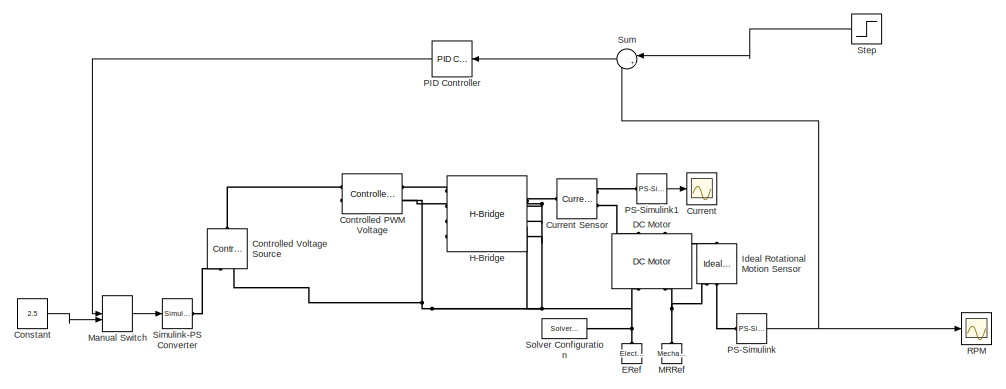
[diagram: root canvas - part 1/3, top left region]
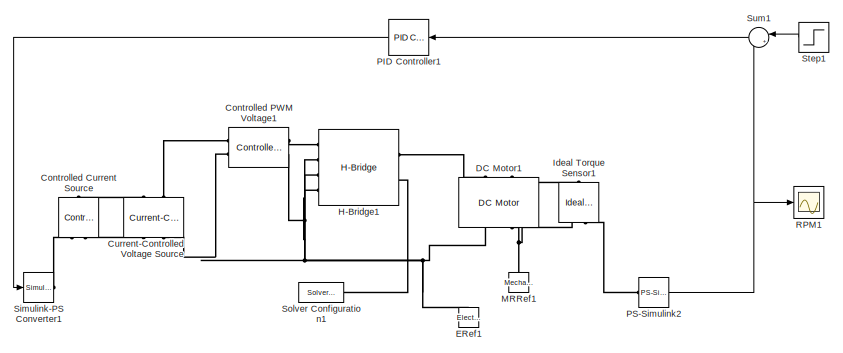
[diagram: root canvas - part 2/3, top right region]
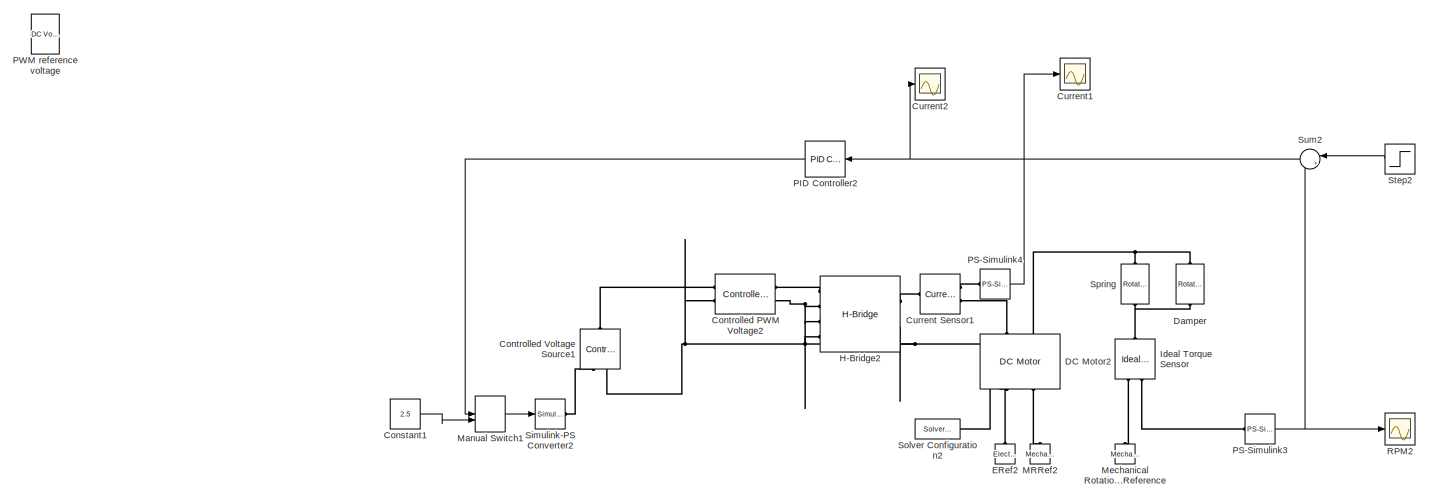
[diagram: root canvas - part 3/3, bottom center region]
MODEL slx_57faae18de76
KIND model
CONFIG AbsTol = 1e-3
CONFIG EnableMultiTasking = on
CONFIG FixedStep = 1e-3
CONFIG MaxStep = auto
CONFIG MinStep = auto
CONFIG RelTol = 1e-3
CONFIG SampleTimeConstraint = Unconstrained
CONFIG SolverName = FixedStepAuto
CONFIG StartTime = 0.0
CONFIG StopTime = 10
BLOCK [Constant] Constant
  Value = 2.5
BLOCK [Constant] Constant1
  Value = 2.5
BLOCK [Reference] Controlled Current Source  REF=fl_lib/Electrical/Electrical Sources/Controlled Current
Source
  Commented = on
  NameLocation = right
  Ports = [0, 0, 0, 0, 0, 1, 2]
  SourceBlock = fl_lib/Electrical/Electrical Sources/Controlled Current\nSource
  SourceProductBaseCode = SS
  SourceType = Controlled Current\nSource
BLOCK [Reference] Controlled PWM Voltage  REF=ee_lib/Integrated Circuits/Controlled PWM
Voltage
  Ports = [0, 0, 0, 0, 0, 2, 2]
  SourceBlock = ee_lib/Integrated Circuits/Controlled PWM\nVoltage
  SourceProductBaseCode = PS
  SourceType = Controlled PWM\nVoltage
BLOCK [Reference] Controlled PWM Voltage1  REF=ee_lib/Integrated Circuits/Controlled PWM
Voltage
  Commented = on
  Ports = [0, 0, 0, 0, 0, 2, 2]
  SourceBlock = ee_lib/Integrated Circuits/Controlled PWM\nVoltage
  SourceProductBaseCode = PS
  SourceType = Controlled PWM\nVoltage
BLOCK [Reference] Controlled PWM Voltage2  REF=ee_lib/Integrated Circuits/Controlled PWM
Voltage
  Ports = [0, 0, 0, 0, 0, 2, 2]
  SourceBlock = ee_lib/Integrated Circuits/Controlled PWM\nVoltage
  SourceProductBaseCode = PS
  SourceType = Controlled PWM\nVoltage
BLOCK [Reference] Controlled Voltage Source  REF=fl_lib/Electrical/Electrical Sources/Controlled Voltage
Source
  NameLocation = right
  Ports = [0, 0, 0, 0, 0, 1, 2]
  SourceBlock = fl_lib/Electrical/Electrical Sources/Controlled Voltage\nSource
  SourceProductBaseCode = SS
  SourceType = Controlled Voltage\nSource
BLOCK [Reference] Controlled Voltage Source1  REF=fl_lib/Electrical/Electrical Sources/Controlled Voltage
Source
  NameLocation = right
  Ports = [0, 0, 0, 0, 0, 1, 2]
  SourceBlock = fl_lib/Electrical/Electrical Sources/Controlled Voltage\nSource
  SourceProductBaseCode = SS
  SourceType = Controlled Voltage\nSource
BLOCK [Scope] Current
  Floating = off
  NumInputPorts = 1
  Ports = [1]
  ScopeSpecificationString = Simulink.scopes.TimeScopeBlockCfg('CurrentConfiguration', extmgr.ConfigurationSet(extmgr.Configuration('Core','General UI',true),extmgr.Configuration('Core','Source UI',true),extmgr.Configuration('Sources','WiredSimulink',true,'DataLogging',true,'DataLoggingVariableName','RPM','DataLoggingSaveFormat','StructureWithTime','DataLoggingDecimation','1','DataLoggingDecimateData',true),extmgr.Configurati...<+1687ch>
BLOCK [Reference] Current Sensor  REF=fl_lib/Electrical/Electrical Sensors/Current Sensor
  NameLocation = top
  Ports = [0, 0, 0, 0, 0, 1, 2]
  SourceBlock = fl_lib/Electrical/Electrical Sensors/Current Sensor
  SourceProductName = Foundation Library
  SourceType = Current Sensor
BLOCK [Reference] Current Sensor1  REF=fl_lib/Electrical/Electrical Sensors/Current Sensor
  NameLocation = top
  Ports = [0, 0, 0, 0, 0, 1, 2]
  SourceBlock = fl_lib/Electrical/Electrical Sensors/Current Sensor
  SourceProductName = Foundation Library
  SourceType = Current Sensor
BLOCK [Reference] Current-Controlled Voltage Source  REF=fl_lib/Electrical/Electrical Sources/Current-Controlled
Voltage Source
  Commented = on
  NameLocation = right
  Ports = [0, 0, 0, 0, 0, 2, 2]
  SourceBlock = fl_lib/Electrical/Electrical Sources/Current-Controlled\nVoltage Source
  SourceProductBaseCode = SS
  SourceType = Current-Controlled\nVoltage Source
BLOCK [Scope] Current1
  Floating = off
  NumInputPorts = 1
  Ports = [1]
  ScopeSpecificationString = Simulink.scopes.TimeScopeBlockCfg('CurrentConfiguration', extmgr.ConfigurationSet(extmgr.Configuration('Core','General UI',true),extmgr.Configuration('Core','Source UI',true),extmgr.Configuration('Sources','WiredSimulink',true,'DataLogging',true,'DataLoggingVariableName','ScopeData2','DataLoggingSaveFormat','StructureWithTime','DataLoggingDecimation','1','DataLoggingDecimateData',true),extmgr.Conf...<+1703ch>
BLOCK [Scope] Current2
  Floating = off
  NumInputPorts = 1
  Ports = [1]
  ScopeSpecificationString = Simulink.scopes.TimeScopeBlockCfg('CurrentConfiguration', extmgr.ConfigurationSet(extmgr.Configuration('Core','General UI',true),extmgr.Configuration('Core','Source UI',true),extmgr.Configuration('Sources','WiredSimulink',true,'DataLogging',true,'DataLoggingVariableName','ScopeData4','DataLoggingSaveFormat','StructureWithTime','DataLoggingDecimation','1','DataLoggingDecimateData',true),extmgr.Conf...<+1695ch>
BLOCK [Reference] DC Motor  REF=ee_lib/Electromechanical/Brushed Motors/DC Motor
  NameLocation = left
  Ports = [0, 0, 0, 0, 0, 2, 2]
  SourceBlock = ee_lib/Electromechanical/Brushed Motors/DC Motor
  SourceProductBaseCode = PS
  SourceType = DC Motor
BLOCK [Reference] DC Motor1  REF=ee_lib/Electromechanical/Brushed Motors/DC Motor
  Commented = on
  NameLocation = right
  Ports = [0, 0, 0, 0, 0, 2, 2]
  SourceBlock = ee_lib/Electromechanical/Brushed Motors/DC Motor
  SourceProductBaseCode = PS
  SourceType = DC Motor
BLOCK [Reference] DC Motor2  REF=ee_lib/Electromechanical/Brushed Motors/DC Motor
  NameLocation = left
  Ports = [0, 0, 0, 0, 0, 2, 2]
  SourceBlock = ee_lib/Electromechanical/Brushed Motors/DC Motor
  SourceProductBaseCode = PS
  SourceType = DC Motor
BLOCK [Reference] Damper  REF=fl_lib/Mechanical/Rotational Elements/Rotational Damper
  NameLocation = right
  Ports = [0, 0, 0, 0, 0, 1, 1]
  SourceBlock = fl_lib/Mechanical/Rotational Elements/Rotational Damper
  SourceProductName = Foundation Library
  SourceType = Rotational Damper
BLOCK [Reference] ERef  REF=fl_lib/Electrical/Electrical Elements/Electrical Reference
  NameLocation = left
  Ports = [0, 0, 0, 0, 0, 1]
  SourceBlock = fl_lib/Electrical/Electrical Elements/Electrical Reference
  SourceProductName = Foundation Library
  SourceType = Electrical Reference
BLOCK [Reference] ERef1  REF=fl_lib/Electrical/Electrical Elements/Electrical Reference
  Commented = on
  NameLocation = left
  Ports = [0, 0, 0, 0, 0, 1]
  SourceBlock = fl_lib/Electrical/Electrical Elements/Electrical Reference
  SourceProductName = Foundation Library
  SourceType = Electrical Reference
BLOCK [Reference] ERef2  REF=fl_lib/Electrical/Electrical Elements/Electrical Reference
  NameLocation = left
  Ports = [0, 0, 0, 0, 0, 1]
  SourceBlock = fl_lib/Electrical/Electrical Elements/Electrical Reference
  SourceProductName = Foundation Library
  SourceType = Electrical Reference
BLOCK [Reference] H-Bridge  REF=ee_lib/Semiconductors &
Converters/Converters/H-Bridge
  Ports = [0, 0, 0, 0, 0, 4, 2]
  SourceBlock = ee_lib/Semiconductors &\nConverters/Converters/H-Bridge
  SourceProductBaseCode = PS
  SourceType = H-Bridge
BLOCK [Reference] H-Bridge1  REF=ee_lib/Semiconductors &
Converters/Converters/H-Bridge
  Commented = on
  Ports = [0, 0, 0, 0, 0, 4, 2]
  SourceBlock = ee_lib/Semiconductors &\nConverters/Converters/H-Bridge
  SourceProductBaseCode = PS
  SourceType = H-Bridge
BLOCK [Reference] H-Bridge2  REF=ee_lib/Semiconductors &
Converters/Converters/H-Bridge
  Ports = [0, 0, 0, 0, 0, 4, 2]
  SourceBlock = ee_lib/Semiconductors &\nConverters/Converters/H-Bridge
  SourceProductBaseCode = PS
  SourceType = H-Bridge
BLOCK [Reference] Ideal Rotational Motion Sensor  REF=fl_lib/Mechanical/Mechanical Sensors/Ideal Rotational
Motion Sensor
  NameLocation = right
  Ports = [0, 0, 0, 0, 0, 1, 3]
  SourceBlock = fl_lib/Mechanical/Mechanical Sensors/Ideal Rotational\nMotion Sensor
  SourceProductName = Foundation Library
  SourceType = Ideal Rotational\nMotion Sensor
BLOCK [Reference] Ideal Torque Sensor  REF=fl_lib/Mechanical/Mechanical Sensors/Ideal Torque Sensor
  NameLocation = left
  Ports = [0, 0, 0, 0, 0, 1, 2]
  SourceBlock = fl_lib/Mechanical/Mechanical Sensors/Ideal Torque Sensor
  SourceProductBaseCode = SS
  SourceType = Ideal Torque Sensor
BLOCK [Reference] Ideal Torque Sensor1  REF=fl_lib/Mechanical/Mechanical Sensors/Ideal Torque Sensor
  Commented = on
  NameLocation = left
  Ports = [0, 0, 0, 0, 0, 1, 2]
  SourceBlock = fl_lib/Mechanical/Mechanical Sensors/Ideal Torque Sensor
  SourceProductBaseCode = SS
  SourceType = Ideal Torque Sensor
BLOCK [Reference] MRRef  REF=fl_lib/Mechanical/Rotational Elements/Mechanical
Rotational Reference
  NameLocation = right
  Ports = [0, 0, 0, 0, 0, 1]
  SourceBlock = fl_lib/Mechanical/Rotational Elements/Mechanical\nRotational Reference
  SourceProductName = Foundation Library
  SourceType = Mechanical\nRotational Reference
BLOCK [Reference] MRRef1  REF=fl_lib/Mechanical/Rotational Elements/Mechanical
Rotational Reference
  Commented = on
  NameLocation = right
  Ports = [0, 0, 0, 0, 0, 1]
  SourceBlock = fl_lib/Mechanical/Rotational Elements/Mechanical\nRotational Reference
  SourceProductName = Foundation Library
  SourceType = Mechanical\nRotational Reference
BLOCK [Reference] MRRef2  REF=fl_lib/Mechanical/Rotational Elements/Mechanical
Rotational Reference
  NameLocation = right
  Ports = [0, 0, 0, 0, 0, 1]
  SourceBlock = fl_lib/Mechanical/Rotational Elements/Mechanical\nRotational Reference
  SourceProductName = Foundation Library
  SourceType = Mechanical\nRotational Reference
BLOCK [ManualSwitch] Manual Switch
BLOCK [ManualSwitch] Manual Switch1
BLOCK [Reference] Mechanical Rotational Reference  REF=fl_lib/Mechanical/Rotational Elements/Mechanical
Rotational Reference
  NameLocation = right
  Ports = [0, 0, 0, 0, 0, 1]
  SourceBlock = fl_lib/Mechanical/Rotational Elements/Mechanical\nRotational Reference
  SourceProductBaseCode = SS
  SourceType = Mechanical\nRotational Reference
BLOCK [Reference] PID Controller  REF=pid_lib/PID Controller
  Ports = [1, 1]
  SourceBlock = pid_lib/PID Controller
  SourceProductBaseCode = SL
  SourceType = PID 1dof
BLOCK [Reference] PID Controller1  REF=pid_lib/PID Controller
  Commented = on
  Ports = [1, 1]
  SourceBlock = pid_lib/PID Controller
  SourceProductBaseCode = SL
  SourceType = PID 1dof
BLOCK [Reference] PID Controller2  REF=pid_lib/PID Controller
  Ports = [1, 1]
  SourceBlock = pid_lib/PID Controller
  SourceProductBaseCode = SL
  SourceType = PID 1dof
BLOCK [Reference] PS-Simulink  REF=nesl_utility/PS-Simulink
Converter
  Ports = [0, 1, 0, 0, 0, 1]
  SourceBlock = nesl_utility/PS-Simulink\nConverter
  SourceProductBaseCode = SS
  SourceType = PS-Simulink\nConverter
BLOCK [Reference] PS-Simulink1  REF=nesl_utility/PS-Simulink
Converter
  Ports = [0, 1, 0, 0, 0, 1]
  SourceBlock = nesl_utility/PS-Simulink\nConverter
  SourceProductBaseCode = SS
  SourceType = PS-Simulink\nConverter
BLOCK [Reference] PS-Simulink2  REF=nesl_utility/PS-Simulink
Converter
  Commented = on
  Ports = [0, 1, 0, 0, 0, 1]
  SourceBlock = nesl_utility/PS-Simulink\nConverter
  SourceProductBaseCode = SS
  SourceType = PS-Simulink\nConverter
BLOCK [Reference] PS-Simulink3  REF=nesl_utility/PS-Simulink
Converter
  Ports = [0, 1, 0, 0, 0, 1]
  SourceBlock = nesl_utility/PS-Simulink\nConverter
  SourceProductBaseCode = SS
  SourceType = PS-Simulink\nConverter
BLOCK [Reference] PS-Simulink4  REF=nesl_utility/PS-Simulink
Converter
  Ports = [0, 1, 0, 0, 0, 1]
  SourceBlock = nesl_utility/PS-Simulink\nConverter
  SourceProductBaseCode = SS
  SourceType = PS-Simulink\nConverter
BLOCK [Reference] PWM reference voltage  REF=fl_lib/Electrical/Electrical Sources/DC Voltage Source
  Commented = on
  NameLocation = right
  Ports = [0, 0, 0, 0, 0, 1, 1]
  SourceBlock = fl_lib/Electrical/Electrical Sources/DC Voltage Source
  SourceProductName = Foundation Library
  SourceType = DC Voltage Source
BLOCK [Scope] RPM
  Floating = off
  NumInputPorts = 1
  Ports = [1]
  ScopeSpecificationString = Simulink.scopes.TimeScopeBlockCfg('CurrentConfiguration', extmgr.ConfigurationSet(extmgr.Configuration('Core','General UI',true),extmgr.Configuration('Core','Source UI',true),extmgr.Configuration('Sources','WiredSimulink',true,'DataLogging',true,'DataLoggingVariableName','RPM1','DataLoggingSaveFormat','StructureWithTime','DataLoggingDecimation','1','DataLoggingDecimateData',true),extmgr.Configurat...<+1649ch>
BLOCK [Scope] RPM1
  Commented = on
  Floating = off
  NumInputPorts = 1
  Ports = [1]
  ScopeSpecificationString = Simulink.scopes.TimeScopeBlockCfg('CurrentConfiguration', extmgr.ConfigurationSet(extmgr.Configuration('Core','General UI',true),extmgr.Configuration('Core','Source UI',true),extmgr.Configuration('Sources','WiredSimulink',true,'DataLogging',true,'DataLoggingVariableName','ScopeData1','DataLoggingSaveFormat','StructureWithTime','DataLoggingDecimation','1','DataLoggingDecimateData',true),extmgr.Conf...<+1664ch>
BLOCK [Scope] RPM2
  Floating = off
  NumInputPorts = 1
  Ports = [1]
  ScopeSpecificationString = Simulink.scopes.TimeScopeBlockCfg('CurrentConfiguration', extmgr.ConfigurationSet(extmgr.Configuration('Core','General UI',true),extmgr.Configuration('Core','Source UI',true),extmgr.Configuration('Sources','WiredSimulink',true,'DataLogging',true,'DataLoggingVariableName','ScopeData3','DataLoggingSaveFormat','StructureWithTime','DataLoggingDecimation','1','DataLoggingDecimateData',true),extmgr.Conf...<+1712ch>
BLOCK [Reference] Simulink-PS Converter  REF=nesl_utility/Simulink-PS
Converter
  Ports = [1, 0, 0, 0, 0, 0, 1]
  SourceBlock = nesl_utility/Simulink-PS\nConverter
  SourceProductBaseCode = SS
  SourceType = Simulink-PS\nConverter
BLOCK [Reference] Simulink-PS Converter1  REF=nesl_utility/Simulink-PS
Converter
  Commented = on
  Ports = [1, 0, 0, 0, 0, 0, 1]
  SourceBlock = nesl_utility/Simulink-PS\nConverter
  SourceProductBaseCode = SS
  SourceType = Simulink-PS\nConverter
BLOCK [Reference] Simulink-PS Converter2  REF=nesl_utility/Simulink-PS
Converter
  Ports = [1, 0, 0, 0, 0, 0, 1]
  SourceBlock = nesl_utility/Simulink-PS\nConverter
  SourceProductBaseCode = SS
  SourceType = Simulink-PS\nConverter
BLOCK [Reference] Solver Configuration  REF=nesl_utility/Solver
Configuration
  Ports = [0, 0, 0, 0, 0, 0, 1]
  SourceBlock = nesl_utility/Solver\nConfiguration
  SourceProductBaseCode = SS
  SourceType = Solver\nConfiguration
BLOCK [Reference] Solver Configuration1  REF=nesl_utility/Solver
Configuration
  Commented = on
  Ports = [0, 0, 0, 0, 0, 0, 1]
  SourceBlock = nesl_utility/Solver\nConfiguration
  SourceProductBaseCode = SS
  SourceType = Solver\nConfiguration
BLOCK [Reference] Solver Configuration2  REF=nesl_utility/Solver
Configuration
  Ports = [0, 0, 0, 0, 0, 0, 1]
  SourceBlock = nesl_utility/Solver\nConfiguration
  SourceProductBaseCode = SS
  SourceType = Solver\nConfiguration
BLOCK [Reference] Spring  REF=fl_lib/Mechanical/Rotational Elements/Rotational Spring
  NameLocation = left
  Ports = [0, 0, 0, 0, 0, 1, 1]
  SourceBlock = fl_lib/Mechanical/Rotational Elements/Rotational Spring
  SourceProductName = Foundation Library
  SourceType = Rotational Spring
BLOCK [Step] Step
  After = 2000
  SampleTime = 0
BLOCK [Step] Step1
  After = -2000
  Commented = on
  SampleTime = 0
BLOCK [Step] Step2
  After = 100
  SampleTime = 0
BLOCK [Sum] Sum
  Inputs = |+-
  Ports = [2, 1]
BLOCK [Sum] Sum1
  Commented = on
  Inputs = |+-
  Ports = [2, 1]
BLOCK [Sum] Sum2
  Inputs = |+-
  Ports = [2, 1]
LINE Constant1:1 -> Manual Switch1:2
LINE Constant:1 -> Manual Switch:2
LINE Manual Switch1:1 -> Simulink-PS Converter2:1
LINE Manual Switch:1 -> Simulink-PS Converter:1
LINE PID Controller1:1 -> Simulink-PS Converter1:1
LINE PID Controller2:1 -> Manual Switch1:1
LINE PID Controller:1 -> Manual Switch:1
LINE PS-Simulink1:1 -> Current:1
NET PS-Simulink2:1 -> RPM1:1, Sum1:2
NET PS-Simulink3:1 -> RPM2:1, Sum2:2
LINE PS-Simulink4:1 -> Current1:1
NET PS-Simulink:1 -> RPM:1, Sum:2
LINE Step1:1 -> Sum1:1
LINE Step2:1 -> Sum2:1
LINE Step:1 -> Sum:1
LINE Sum1:1 -> PID Controller1:1
NET Sum2:1 -> Current2:1, PID Controller2:1
LINE Sum:1 -> PID Controller:1
PLINE Controlled Current Source:LConn1 -- Current-Controlled Voltage Source:LConn1
PLINE Controlled Current Source:RConn1 -- Simulink-PS Converter1:RConn1
PLINE Controlled Current Source:RConn2 -- Current-Controlled Voltage Source:RConn1
PLINE Controlled PWM Voltage1:LConn1 -- Current-Controlled Voltage Source:LConn2
PNET net1: Controlled PWM Voltage1:LConn2 -- Controlled PWM Voltage1:RConn2 -- Current-Controlled Voltage Source:RConn2 -- DC Motor1:RConn1 -- ERef1:LConn1 -- H-Bridge1:LConn2 -- H-Bridge1:LConn3 -- H-Bridge1:LConn4 -- H-Bridge1:RConn2 -- Solver Configuration1:RConn1
PLINE Controlled PWM Voltage1:RConn1 -- H-Bridge1:LConn1
PLINE Controlled PWM Voltage2:LConn1 -- Controlled Voltage Source1:LConn1
PNET net2: Controlled PWM Voltage2:LConn2 -- Controlled PWM Voltage2:RConn2 -- Controlled Voltage Source1:RConn2 -- DC Motor2:RConn1 -- ERef2:LConn1 -- H-Bridge2:LConn2 -- H-Bridge2:LConn3 -- H-Bridge2:LConn4 -- H-Bridge2:RConn2 -- Solver Configuration2:RConn1
PLINE Controlled PWM Voltage2:RConn1 -- H-Bridge2:LConn1
PLINE Controlled PWM Voltage:LConn1 -- Controlled Voltage Source:LConn1
PNET net3: Controlled PWM Voltage:LConn2 -- Controlled PWM Voltage:RConn2 -- Controlled Voltage Source:RConn2 -- DC Motor:RConn1 -- ERef:LConn1 -- H-Bridge:LConn2 -- H-Bridge:LConn3 -- H-Bridge:LConn4 -- H-Bridge:RConn2 -- Solver Configuration:RConn1
PLINE Controlled PWM Voltage:RConn1 -- H-Bridge:LConn1
PLINE Controlled Voltage Source1:RConn1 -- Simulink-PS Converter2:RConn1
PLINE Controlled Voltage Source:RConn1 -- Simulink-PS Converter:RConn1
PLINE Current Sensor1:LConn1 -- H-Bridge2:RConn1
PLINE Current Sensor1:RConn1 -- PS-Simulink4:LConn1
PLINE Current Sensor1:RConn2 -- DC Motor2:LConn1
PLINE Current Sensor:LConn1 -- H-Bridge:RConn1
PLINE Current Sensor:RConn1 -- PS-Simulink1:LConn1
PLINE Current Sensor:RConn2 -- DC Motor:LConn1
PLINE DC Motor1:LConn1 -- H-Bridge1:RConn1
PLINE DC Motor1:LConn2 -- Ideal Torque Sensor1:LConn1
PNET net4: DC Motor1:RConn2 -- Ideal Torque Sensor1:RConn1 -- MRRef1:LConn1
PNET net5: DC Motor2:LConn2 -- Damper:RConn1 -- Spring:RConn1
PLINE DC Motor2:RConn2 -- MRRef2:LConn1
PLINE DC Motor:LConn2 -- Ideal Rotational Motion Sensor:LConn1
PNET net6: DC Motor:RConn2 -- Ideal Rotational Motion Sensor:RConn1 -- MRRef:LConn1
PNET net7: Damper:LConn1 -- Ideal Torque Sensor:LConn1 -- Spring:LConn1
PLINE Ideal Rotational Motion Sensor:RConn2 -- PS-Simulink:LConn1
PLINE Ideal Torque Sensor1:RConn2 -- PS-Simulink2:LConn1
PLINE Ideal Torque Sensor:RConn1 -- Mechanical Rotational Reference:LConn1
PLINE Ideal Torque Sensor:RConn2 -- PS-Simulink3:LConn1
note: NET lines group one-source signal fan-out (src -> all destinations, sorted); 1:1 wires keep LINE; PNET lines group multi-terminal physical nets as a canonical sorted terminal list (undirected conserving connections); 2-terminal nets keep the pairwise PLINE form
